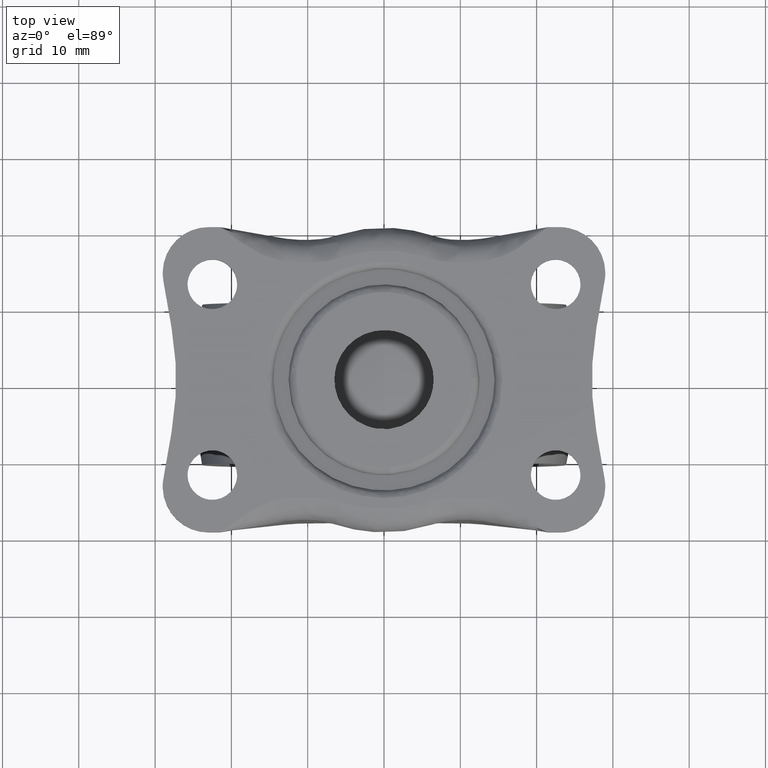
[diagram: clean part render]
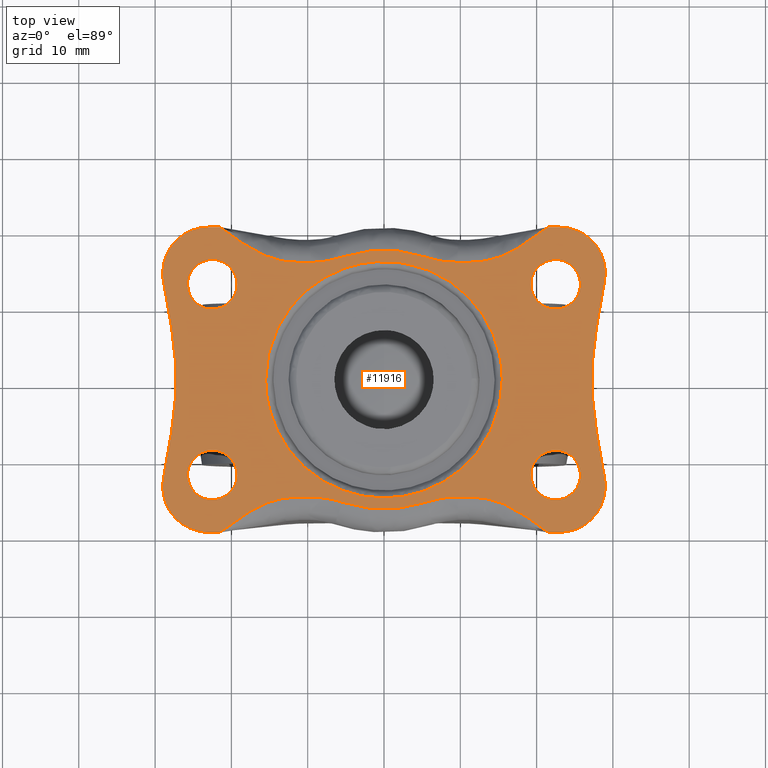
[diagram: same view with one face highlighted and labeled with its STEP entity id]
A machine part, top view. The second image highlights one B-rep face of the part: STEP entity #11916.
In plain terms, the highlighted face is a freeform B-spline surface patch.
Its self-contained STEP definition (entity closure, byte-faithful):
#2978=CARTESIAN_POINT('',(-22.883611262659070,9.272719039321011,40.0));
#2979=VERTEX_POINT('',#2978);
#2985=CARTESIAN_POINT('',(-19.250000000000000,12.500000000000000,40.0));
#2986=VERTEX_POINT('',#2985);
#2987=CARTESIAN_POINT('',(-22.883611262659070,9.272719039321011,40.0));
#2988=CARTESIAN_POINT('',(-22.692478388893573,9.250000000000000,40.0));
#2989=CARTESIAN_POINT('',(-22.500000000000000,9.250000000000002,40.0));
#2990=CARTESIAN_POINT('',(-19.250000000000000,9.250000000000002,40.0));
#2991=CARTESIAN_POINT('',(-19.250000000000000,12.500000000000000,40.0));
#2999=(BOUNDED_CURVE()B_SPLINE_CURVE(2,(#2987,#2988,#2989,#2990,#2991),.UNSPECIFIED.,.F.,.U.)B_SPLINE_CURVE_WITH_KNOTS((3,2,3),(0.229562473513068,0.250000000000000,0.500000000000000),.UNSPECIFIED.)CURVE()GEOMETRIC_REPRESENTATION_ITEM()RATIONAL_B_SPLINE_CURVE((0.956026754182836,0.976055948330629,1.0,0.707106781186547,1.0))REPRESENTATION_ITEM(''));
#3000=EDGE_CURVE('',#2979,#2986,#2999,.T.);
#3002=CARTESIAN_POINT('',(-22.301592246408148,15.743938094864729,40.0));
#3003=VERTEX_POINT('',#3002);
#3004=CARTESIAN_POINT('',(-19.250000000000000,12.500000000000000,40.0));
#3005=CARTESIAN_POINT('',(-19.250000000000004,15.557294717247938,40.000000000000007));
#3006=CARTESIAN_POINT('',(-22.301592246408148,15.743938094864728,40.0));
#3014=(BOUNDED_CURVE()B_SPLINE_CURVE(2,(#3004,#3005,#3006),.UNSPECIFIED.,.F.,.U.)B_SPLINE_CURVE_WITH_KNOTS((3,3),(0.500000000000000,0.739332962230951),.UNSPECIFIED.)CURVE()GEOMETRIC_REPRESENTATION_ITEM()RATIONAL_B_SPLINE_CURVE((1.0,0.719603993296073,0.976072041649591))REPRESENTATION_ITEM(''));
#3015=EDGE_CURVE('',#2986,#3003,#3014,.T.);
#3089=CARTESIAN_POINT('',(-25.750000000000000,12.500000000000000,40.0));
#3090=VERTEX_POINT('',#3089);
#3091=CARTESIAN_POINT('',(-22.301592246408148,15.743938094864729,40.0));
#3092=CARTESIAN_POINT('',(-22.400703519175732,15.749999999999998,40.0));
#3093=CARTESIAN_POINT('',(-22.500000000000000,15.750000000000000,40.0));
#3094=CARTESIAN_POINT('',(-25.750000000000004,15.749999999999995,40.0));
#3095=CARTESIAN_POINT('',(-25.750000000000000,12.500000000000000,40.0));
#3103=(BOUNDED_CURVE()B_SPLINE_CURVE(2,(#3091,#3092,#3093,#3094,#3095),.UNSPECIFIED.,.F.,.U.)B_SPLINE_CURVE_WITH_KNOTS((3,2,3),(0.739332962230951,0.750000000000000,1.0),.UNSPECIFIED.)CURVE()GEOMETRIC_REPRESENTATION_ITEM()RATIONAL_B_SPLINE_CURVE((0.976072041649589,0.987502787890474,1.0,0.707106781186547,1.0))REPRESENTATION_ITEM(''));
#3104=EDGE_CURVE('',#3003,#3090,#3103,.T.);
#3106=CARTESIAN_POINT('',(-25.750000000000000,12.500000000000000,40.0));
#3107=CARTESIAN_POINT('',(-25.750000000000000,9.613432790702369,40.0));
#3108=CARTESIAN_POINT('',(-22.883611262659070,9.272719039321011,40.0));
#3116=(BOUNDED_CURVE()B_SPLINE_CURVE(2,(#3106,#3107,#3108),.UNSPECIFIED.,.F.,.U.)B_SPLINE_CURVE_WITH_KNOTS((3,3),(0.0,0.229562473513068),.UNSPECIFIED.)CURVE()GEOMETRIC_REPRESENTATION_ITEM()RATIONAL_B_SPLINE_CURVE((1.0,0.731050832855918,0.956026754182836))REPRESENTATION_ITEM(''));
#3117=EDGE_CURVE('',#3090,#2979,#3116,.T.);
#3350=CARTESIAN_POINT('',(22.116388737340941,9.272719039321011,40.0));
#3351=VERTEX_POINT('',#3350);
#3357=CARTESIAN_POINT('',(25.750000000000000,12.500000000000000,40.0));
#3358=VERTEX_POINT('',#3357);
#3359=CARTESIAN_POINT('',(22.116388737340930,9.272719039321011,40.0));
#3360=CARTESIAN_POINT('',(22.307521611106438,9.250000000000002,39.999999999999993));
#3361=CARTESIAN_POINT('',(22.500000000000000,9.250000000000002,40.0));
#3362=CARTESIAN_POINT('',(25.750000000000004,9.250000000000002,40.0));
#3363=CARTESIAN_POINT('',(25.750000000000000,12.500000000000000,40.0));
#3371=(BOUNDED_CURVE()B_SPLINE_CURVE(2,(#3359,#3360,#3361,#3362,#3363),.UNSPECIFIED.,.F.,.U.)B_SPLINE_CURVE_WITH_KNOTS((3,2,3),(0.229562473513068,0.250000000000000,0.500000000000000),.UNSPECIFIED.)CURVE()GEOMETRIC_REPRESENTATION_ITEM()RATIONAL_B_SPLINE_CURVE((0.956026754182836,0.976055948330629,1.0,0.707106781186547,1.0))REPRESENTATION_ITEM(''));
#3372=EDGE_CURVE('',#3351,#3358,#3371,.T.);
#3374=CARTESIAN_POINT('',(22.698407753591859,15.743938094864729,40.0));
#3375=VERTEX_POINT('',#3374);
#3376=CARTESIAN_POINT('',(25.750000000000000,12.500000000000000,40.0));
#3377=CARTESIAN_POINT('',(25.750000000000000,15.557294717247938,40.000000000000007));
#3378=CARTESIAN_POINT('',(22.698407753591859,15.743938094864728,40.0));
#3386=(BOUNDED_CURVE()B_SPLINE_CURVE(2,(#3376,#3377,#3378),.UNSPECIFIED.,.F.,.U.)B_SPLINE_CURVE_WITH_KNOTS((3,3),(0.500000000000000,0.739332962230951),.UNSPECIFIED.)CURVE()GEOMETRIC_REPRESENTATION_ITEM()RATIONAL_B_SPLINE_CURVE((1.0,0.719603993296073,0.976072041649591))REPRESENTATION_ITEM(''));
#3387=EDGE_CURVE('',#3358,#3375,#3386,.T.);
#3461=CARTESIAN_POINT('',(19.250000000000000,12.500000000000000,40.0));
#3462=VERTEX_POINT('',#3461);
#3463=CARTESIAN_POINT('',(22.698407753591855,15.743938094864731,40.000000000000007));
#3464=CARTESIAN_POINT('',(22.599296480824272,15.750000000000000,40.0));
#3465=CARTESIAN_POINT('',(22.500000000000000,15.750000000000000,40.0));
#3466=CARTESIAN_POINT('',(19.250000000000000,15.749999999999995,40.0));
#3467=CARTESIAN_POINT('',(19.250000000000000,12.500000000000000,40.0));
#3475=(BOUNDED_CURVE()B_SPLINE_CURVE(2,(#3463,#3464,#3465,#3466,#3467),.UNSPECIFIED.,.F.,.U.)B_SPLINE_CURVE_WITH_KNOTS((3,2,3),(0.739332962230950,0.750000000000000,1.0),.UNSPECIFIED.)CURVE()GEOMETRIC_REPRESENTATION_ITEM()RATIONAL_B_SPLINE_CURVE((0.976072041649589,0.987502787890474,1.0,0.707106781186547,1.0))REPRESENTATION_ITEM(''));
#3476=EDGE_CURVE('',#3375,#3462,#3475,.T.);
#3478=CARTESIAN_POINT('',(19.250000000000000,12.500000000000000,40.0));
#3479=CARTESIAN_POINT('',(19.250000000000007,9.613432790702367,40.0));
#3480=CARTESIAN_POINT('',(22.116388737340930,9.272719039321011,40.0));
#3488=(BOUNDED_CURVE()B_SPLINE_CURVE(2,(#3478,#3479,#3480),.UNSPECIFIED.,.F.,.U.)B_SPLINE_CURVE_WITH_KNOTS((3,3),(0.0,0.229562473513068),.UNSPECIFIED.)CURVE()GEOMETRIC_REPRESENTATION_ITEM()RATIONAL_B_SPLINE_CURVE((1.0,0.731050832855918,0.956026754182836))REPRESENTATION_ITEM(''));
#3489=EDGE_CURVE('',#3462,#3351,#3488,.T.);
#3536=CARTESIAN_POINT('',(22.116388737340941,-15.727280960678989,40.0));
#3537=VERTEX_POINT('',#3536);
#3543=CARTESIAN_POINT('',(25.750000000000000,-12.500000000000000,40.0));
#3544=VERTEX_POINT('',#3543);
#3545=CARTESIAN_POINT('',(22.116388737340941,-15.727280960678993,40.0));
#3546=CARTESIAN_POINT('',(22.307521611106438,-15.750000000000000,39.999999999999993));
#3547=CARTESIAN_POINT('',(22.500000000000000,-15.750000000000000,40.0));
#3548=CARTESIAN_POINT('',(25.750000000000004,-15.749999999999995,40.0));
#3549=CARTESIAN_POINT('',(25.750000000000000,-12.500000000000000,40.0));
#3557=(BOUNDED_CURVE()B_SPLINE_CURVE(2,(#3545,#3546,#3547,#3548,#3549),.UNSPECIFIED.,.F.,.U.)B_SPLINE_CURVE_WITH_KNOTS((3,2,3),(0.229562473513068,0.250000000000000,0.500000000000000),.UNSPECIFIED.)CURVE()GEOMETRIC_REPRESENTATION_ITEM()RATIONAL_B_SPLINE_CURVE((0.956026754182836,0.976055948330629,1.0,0.707106781186547,1.0))REPRESENTATION_ITEM(''));
#3558=EDGE_CURVE('',#3537,#3544,#3557,.T.);
#3560=CARTESIAN_POINT('',(22.698407753591859,-9.256061905135269,40.0));
#3561=VERTEX_POINT('',#3560);
#3562=CARTESIAN_POINT('',(25.750000000000000,-12.500000000000000,40.0));
#3563=CARTESIAN_POINT('',(25.750000000000000,-9.442705282752062,40.000000000000007));
#3564=CARTESIAN_POINT('',(22.698407753591859,-9.256061905135269,40.0));
#3572=(BOUNDED_CURVE()B_SPLINE_CURVE(2,(#3562,#3563,#3564),.UNSPECIFIED.,.F.,.U.)B_SPLINE_CURVE_WITH_KNOTS((3,3),(0.500000000000000,0.739332962230951),.UNSPECIFIED.)CURVE()GEOMETRIC_REPRESENTATION_ITEM()RATIONAL_B_SPLINE_CURVE((1.0,0.719603993296073,0.976072041649591))REPRESENTATION_ITEM(''));
#3573=EDGE_CURVE('',#3544,#3561,#3572,.T.);
#3647=CARTESIAN_POINT('',(19.250000000000000,-12.500000000000000,40.0));
#3648=VERTEX_POINT('',#3647);
#3649=CARTESIAN_POINT('',(22.698407753591855,-9.256061905135269,40.000000000000007));
#3650=CARTESIAN_POINT('',(22.599296480824272,-9.250000000000004,40.0));
#3651=CARTESIAN_POINT('',(22.500000000000000,-9.250000000000002,40.0));
#3652=CARTESIAN_POINT('',(19.250000000000000,-9.250000000000002,40.0));
#3653=CARTESIAN_POINT('',(19.250000000000000,-12.500000000000000,40.0));
#3661=(BOUNDED_CURVE()B_SPLINE_CURVE(2,(#3649,#3650,#3651,#3652,#3653),.UNSPECIFIED.,.F.,.U.)B_SPLINE_CURVE_WITH_KNOTS((3,2,3),(0.739332962230950,0.750000000000000,1.0),.UNSPECIFIED.)CURVE()GEOMETRIC_REPRESENTATION_ITEM()RATIONAL_B_SPLINE_CURVE((0.976072041649589,0.987502787890474,1.0,0.707106781186547,1.0))REPRESENTATION_ITEM(''));
#3662=EDGE_CURVE('',#3561,#3648,#3661,.T.);
#3664=CARTESIAN_POINT('',(19.250000000000000,-12.500000000000000,40.0));
#3665=CARTESIAN_POINT('',(19.250000000000007,-15.386567209297638,40.0));
#3666=CARTESIAN_POINT('',(22.116388737340944,-15.727280960678995,40.0));
#3674=(BOUNDED_CURVE()B_SPLINE_CURVE(2,(#3664,#3665,#3666),.UNSPECIFIED.,.F.,.U.)B_SPLINE_CURVE_WITH_KNOTS((3,3),(0.0,0.229562473513068),.UNSPECIFIED.)CURVE()GEOMETRIC_REPRESENTATION_ITEM()RATIONAL_B_SPLINE_CURVE((1.0,0.731050832855918,0.956026754182836))REPRESENTATION_ITEM(''));
#3675=EDGE_CURVE('',#3648,#3537,#3674,.T.);
#3722=CARTESIAN_POINT('',(-22.883611262659070,-15.727280960678989,40.0));
#3723=VERTEX_POINT('',#3722);
#3729=CARTESIAN_POINT('',(-19.250000000000000,-12.500000000000000,40.0));
#3730=VERTEX_POINT('',#3729);
#3731=CARTESIAN_POINT('',(-22.883611262659070,-15.727280960678989,40.0));
#3732=CARTESIAN_POINT('',(-22.692478388893573,-15.750000000000004,40.0));
#3733=CARTESIAN_POINT('',(-22.500000000000000,-15.750000000000000,40.0));
#3734=CARTESIAN_POINT('',(-19.250000000000000,-15.749999999999995,40.0));
#3735=CARTESIAN_POINT('',(-19.250000000000000,-12.500000000000000,40.0));
#3743=(BOUNDED_CURVE()B_SPLINE_CURVE(2,(#3731,#3732,#3733,#3734,#3735),.UNSPECIFIED.,.F.,.U.)B_SPLINE_CURVE_WITH_KNOTS((3,2,3),(0.229562473513068,0.250000000000000,0.500000000000000),.UNSPECIFIED.)CURVE()GEOMETRIC_REPRESENTATION_ITEM()RATIONAL_B_SPLINE_CURVE((0.956026754182836,0.976055948330629,1.0,0.707106781186547,1.0))REPRESENTATION_ITEM(''));
#3744=EDGE_CURVE('',#3723,#3730,#3743,.T.);
#3746=CARTESIAN_POINT('',(-22.301592246408148,-9.256061905135269,40.0));
#3747=VERTEX_POINT('',#3746);
#3748=CARTESIAN_POINT('',(-19.250000000000000,-12.500000000000000,40.0));
#3749=CARTESIAN_POINT('',(-19.250000000000004,-9.442705282752062,40.000000000000007));
#3750=CARTESIAN_POINT('',(-22.301592246408148,-9.256061905135269,40.0));
#3758=(BOUNDED_CURVE()B_SPLINE_CURVE(2,(#3748,#3749,#3750),.UNSPECIFIED.,.F.,.U.)B_SPLINE_CURVE_WITH_KNOTS((3,3),(0.500000000000000,0.739332962230951),.UNSPECIFIED.)CURVE()GEOMETRIC_REPRESENTATION_ITEM()RATIONAL_B_SPLINE_CURVE((1.0,0.719603993296073,0.976072041649591))REPRESENTATION_ITEM(''));
#3759=EDGE_CURVE('',#3730,#3747,#3758,.T.);
#3833=CARTESIAN_POINT('',(-25.750000000000000,-12.500000000000000,40.0));
#3834=VERTEX_POINT('',#3833);
#3835=CARTESIAN_POINT('',(-22.301592246408148,-9.256061905135269,40.0));
#3836=CARTESIAN_POINT('',(-22.400703519175732,-9.250000000000002,40.0));
#3837=CARTESIAN_POINT('',(-22.500000000000000,-9.250000000000002,40.0));
#3838=CARTESIAN_POINT('',(-25.750000000000004,-9.250000000000002,40.0));
#3839=CARTESIAN_POINT('',(-25.750000000000000,-12.500000000000000,40.0));
#3847=(BOUNDED_CURVE()B_SPLINE_CURVE(2,(#3835,#3836,#3837,#3838,#3839),.UNSPECIFIED.,.F.,.U.)B_SPLINE_CURVE_WITH_KNOTS((3,2,3),(0.739332962230951,0.750000000000000,1.0),.UNSPECIFIED.)CURVE()GEOMETRIC_REPRESENTATION_ITEM()RATIONAL_B_SPLINE_CURVE((0.976072041649589,0.987502787890474,1.0,0.707106781186547,1.0))REPRESENTATION_ITEM(''));
#3848=EDGE_CURVE('',#3747,#3834,#3847,.T.);
#3850=CARTESIAN_POINT('',(-25.750000000000000,-12.500000000000000,40.0));
#3851=CARTESIAN_POINT('',(-25.750000000000000,-15.386567209297633,40.0));
#3852=CARTESIAN_POINT('',(-22.883611262659070,-15.727280960678989,40.0));
#3860=(BOUNDED_CURVE()B_SPLINE_CURVE(2,(#3850,#3851,#3852),.UNSPECIFIED.,.F.,.U.)B_SPLINE_CURVE_WITH_KNOTS((3,3),(0.0,0.229562473513068),.UNSPECIFIED.)CURVE()GEOMETRIC_REPRESENTATION_ITEM()RATIONAL_B_SPLINE_CURVE((1.0,0.731050832855918,0.956026754182836))REPRESENTATION_ITEM(''));
#3861=EDGE_CURVE('',#3834,#3723,#3860,.T.);
#3938=CARTESIAN_POINT('',(-15.498776183558910,-0.194773618373334,40.0));
#3939=VERTEX_POINT('',#3938);
#3953=CARTESIAN_POINT('',(15.500000000000000,0.0,40.0));
#3954=VERTEX_POINT('',#3953);
#3955=CARTESIAN_POINT('',(15.500000000000000,0.0,40.0));
#3956=CARTESIAN_POINT('',(15.500000000000004,-15.500000000000004,39.999999999999993));
#3957=CARTESIAN_POINT('',(0.0,-15.500000000000000,40.0));
#3958=CARTESIAN_POINT('',(-15.306434913165440,-15.499999999999995,39.999999999999993));
#3959=CARTESIAN_POINT('',(-15.498776183558917,-0.194773618373334,40.0));
#3967=(BOUNDED_CURVE()B_SPLINE_CURVE(2,(#3955,#3956,#3957,#3958,#3959),.UNSPECIFIED.,.F.,.U.)B_SPLINE_CURVE_WITH_KNOTS((3,2,3),(0.500000000000000,0.750000000000000,0.997784295917156),.UNSPECIFIED.)CURVE()GEOMETRIC_REPRESENTATION_ITEM()RATIONAL_B_SPLINE_CURVE((1.0,0.707106781186548,1.0,0.709702639989596,0.994854295633490))REPRESENTATION_ITEM(''));
#3968=EDGE_CURVE('',#3954,#3939,#3967,.T.);
#3970=CARTESIAN_POINT('',(-1.080865399485148,15.462267940823351,40.0));
#3971=VERTEX_POINT('',#3970);
#3972=CARTESIAN_POINT('',(-1.080865399485148,15.462267940823349,39.999999999999993));
#3973=CARTESIAN_POINT('',(-0.541091296382306,15.499999999999996,39.999999999999993));
#3974=CARTESIAN_POINT('',(0.0,15.500000000000000,40.0));
#3975=CARTESIAN_POINT('',(15.500000000000004,15.500000000000004,39.999999999999993));
#3976=CARTESIAN_POINT('',(15.500000000000000,0.0,40.0));
#3984=(BOUNDED_CURVE()B_SPLINE_CURVE(2,(#3972,#3973,#3974,#3975,#3976),.UNSPECIFIED.,.F.,.U.)B_SPLINE_CURVE_WITH_KNOTS((3,2,3),(0.237833686527947,0.250000000000000,0.500000000000000),.UNSPECIFIED.)CURVE()GEOMETRIC_REPRESENTATION_ITEM()RATIONAL_B_SPLINE_CURVE((0.972879876371865,0.985746277144308,1.0,0.707106781186548,1.0))REPRESENTATION_ITEM(''));
#3985=EDGE_CURVE('',#3971,#3954,#3984,.T.);
#4036=CARTESIAN_POINT('',(-15.500000000000000,0.0,40.0));
#4037=VERTEX_POINT('',#4036);
#4038=CARTESIAN_POINT('',(-15.500000000000000,0.0,40.0));
#4039=CARTESIAN_POINT('',(-15.499999999999996,14.454321132027081,40.0));
#4040=CARTESIAN_POINT('',(-1.080865399485148,15.462267940823356,39.999999999999993));
#4048=(BOUNDED_CURVE()B_SPLINE_CURVE(2,(#4038,#4039,#4040),.UNSPECIFIED.,.F.,.U.)B_SPLINE_CURVE_WITH_KNOTS((3,3),(0.0,0.237833686527947),.UNSPECIFIED.)CURVE()GEOMETRIC_REPRESENTATION_ITEM()RATIONAL_B_SPLINE_CURVE((1.0,0.721360504042240,0.972879876371865))REPRESENTATION_ITEM(''));
#4049=EDGE_CURVE('',#4037,#3971,#4048,.T.);
#4051=CARTESIAN_POINT('',(-15.498776183558910,-0.194773618373334,40.0));
#4052=CARTESIAN_POINT('',(-15.500000000000004,-0.097390654075764,39.999999999999993));
#4053=CARTESIAN_POINT('',(-15.500000000000000,0.0,40.0));
#4061=(BOUNDED_CURVE()B_SPLINE_CURVE(2,(#4051,#4052,#4053),.UNSPECIFIED.,.F.,.U.)B_SPLINE_CURVE_WITH_KNOTS((3,3),(0.997784295917156,1.0),.UNSPECIFIED.)CURVE()GEOMETRIC_REPRESENTATION_ITEM()RATIONAL_B_SPLINE_CURVE((0.994854295633490,0.997404141196951,1.0))REPRESENTATION_ITEM(''));
#4062=EDGE_CURVE('',#3939,#4037,#4061,.T.);
#5480=CARTESIAN_POINT('',(27.835605114469150,-6.819492342354530,40.0));
#5481=VERTEX_POINT('',#5480);
#5487=CARTESIAN_POINT('',(27.838640466785701,-6.836943648978890,40.0));
#5488=VERTEX_POINT('',#5487);
#5489=CARTESIAN_POINT('',(27.838640466785730,-6.836943648978886,40.0));
#5490=CARTESIAN_POINT('',(27.837115062612966,-6.828219339821330,40.000000000000007));
#5491=CARTESIAN_POINT('',(27.835605114469161,-6.819492342354530,40.0));
#5499=(BOUNDED_CURVE()B_SPLINE_CURVE(2,(#5489,#5490,#5491),.UNSPECIFIED.,.F.,.U.)CURVE()GEOMETRIC_REPRESENTATION_ITEM()QUASI_UNIFORM_CURVE()RATIONAL_B_SPLINE_CURVE((1.0,0.999999607798090,1.0))REPRESENTATION_ITEM(''));
#5500=EDGE_CURVE('',#5488,#5481,#5499,.T.);
#5541=CARTESIAN_POINT('',(27.838640466785701,6.836943648978900,40.0));
#5542=VERTEX_POINT('',#5541);
#5548=CARTESIAN_POINT('',(27.835605114469150,6.819492342354530,40.0));
#5549=VERTEX_POINT('',#5548);
#5550=CARTESIAN_POINT('',(27.835605114469161,6.819492342354528,40.0));
#5551=CARTESIAN_POINT('',(27.837115062612959,6.828219339821285,40.0));
#5552=CARTESIAN_POINT('',(27.838640466785730,6.836943648978893,40.0));
#5560=(BOUNDED_CURVE()B_SPLINE_CURVE(2,(#5550,#5551,#5552),.UNSPECIFIED.,.F.,.U.)CURVE()GEOMETRIC_REPRESENTATION_ITEM()QUASI_UNIFORM_CURVE()RATIONAL_B_SPLINE_CURVE((1.0,0.999999607798090,1.0))REPRESENTATION_ITEM(''));
#5561=EDGE_CURVE('',#5549,#5542,#5560,.T.);
#5602=CARTESIAN_POINT('',(-27.835605114468049,6.819492342349180,40.0));
#5603=VERTEX_POINT('',#5602);
#5609=CARTESIAN_POINT('',(-27.838640466784849,6.836943648974891,40.0));
#5610=VERTEX_POINT('',#5609);
#5611=CARTESIAN_POINT('',(-27.838640466784842,6.836943648974893,40.0));
#5612=CARTESIAN_POINT('',(-27.837115062611844,6.828219339816004,40.0));
#5613=CARTESIAN_POINT('',(-27.835605114468031,6.819492342349180,40.0));
#5621=(BOUNDED_CURVE()B_SPLINE_CURVE(2,(#5611,#5612,#5613),.UNSPECIFIED.,.F.,.U.)CURVE()GEOMETRIC_REPRESENTATION_ITEM()QUASI_UNIFORM_CURVE()RATIONAL_B_SPLINE_CURVE((1.0,0.999999607798090,1.0))REPRESENTATION_ITEM(''));
#5622=EDGE_CURVE('',#5610,#5603,#5621,.T.);
#5663=CARTESIAN_POINT('',(-27.838640466785549,-6.836943648978880,40.0));
#5664=VERTEX_POINT('',#5663);
#5670=CARTESIAN_POINT('',(-27.835605114468951,-6.819492342354520,40.0));
#5671=VERTEX_POINT('',#5670);
#5672=CARTESIAN_POINT('',(-27.835605114468962,-6.819492342354517,40.0));
#5673=CARTESIAN_POINT('',(-27.837115062612583,-6.828219339820246,40.0));
#5674=CARTESIAN_POINT('',(-27.838640466785531,-6.836943648978881,40.0));
#5682=(BOUNDED_CURVE()B_SPLINE_CURVE(2,(#5672,#5673,#5674),.UNSPECIFIED.,.F.,.U.)CURVE()GEOMETRIC_REPRESENTATION_ITEM()QUASI_UNIFORM_CURVE()RATIONAL_B_SPLINE_CURVE((1.0,0.999999607798090,1.0))REPRESENTATION_ITEM(''));
#5683=EDGE_CURVE('',#5671,#5664,#5682,.T.);
#5713=CARTESIAN_POINT('',(-13.338354358568759,15.565371980939050,40.0));
#5714=VERTEX_POINT('',#5713);
#5730=CARTESIAN_POINT('',(-21.500166403902849,20.0,40.0));
#5731=VERTEX_POINT('',#5730);
#5739=CARTESIAN_POINT('',(-13.338354358568740,15.565371980939000,40.0));
#5740=CARTESIAN_POINT('',(-16.227004821455552,16.057802242236701,40.0));
#5741=CARTESIAN_POINT('',(-18.863585612679199,18.028901121118349,40.0));
#5742=CARTESIAN_POINT('',(-21.500166403902849,20.0,40.0));
#5743=QUASI_UNIFORM_CURVE('',3,(#5739,#5740,#5741,#5742),.UNSPECIFIED.,.F.,.U.);
#5744=EDGE_CURVE('',#5714,#5731,#5743,.T.);
#5777=CARTESIAN_POINT('',(-11.153750537487880,15.380500000000000,40.0));
#5778=VERTEX_POINT('',#5777);
#5802=CARTESIAN_POINT('',(-11.153750537487880,15.380500000000000,40.0));
#5803=CARTESIAN_POINT('',(-12.253870899920059,15.380546544757800,40.0));
#5804=CARTESIAN_POINT('',(-13.338354358568759,15.565371980939050,40.0));
#5805=QUASI_UNIFORM_CURVE('',2,(#5802,#5803,#5804),.UNSPECIFIED.,.F.,.U.);
#5806=EDGE_CURVE('',#5778,#5714,#5805,.T.);
#5831=CARTESIAN_POINT('',(-9.660201957674060,15.380500000000000,40.0));
#5832=VERTEX_POINT('',#5831);
#5856=CARTESIAN_POINT('',(-9.660201957674051,15.380500000000000,40.0));
#5857=CARTESIAN_POINT('',(-10.158051484278660,15.380500000000000,40.0));
#5858=CARTESIAN_POINT('',(-10.655901010883261,15.380500000000000,40.0));
#5859=CARTESIAN_POINT('',(-11.153750537487880,15.380500000000000,40.0));
#5860=QUASI_UNIFORM_CURVE('',3,(#5856,#5857,#5858,#5859),.UNSPECIFIED.,.F.,.U.);
#5861=EDGE_CURVE('',#5832,#5778,#5860,.T.);
#5914=CARTESIAN_POINT('',(-5.462824469773600,16.070094106098502,40.0));
#5915=VERTEX_POINT('',#5914);
#5939=CARTESIAN_POINT('',(-5.462824469773610,16.070094106098502,40.0));
#5940=CARTESIAN_POINT('',(-7.504399215922860,15.380604032400100,40.0));
#5941=CARTESIAN_POINT('',(-9.660201957674060,15.380500000000000,40.0));
#5942=QUASI_UNIFORM_CURVE('',2,(#5939,#5940,#5941),.UNSPECIFIED.,.F.,.U.);
#5943=EDGE_CURVE('',#5915,#5832,#5942,.T.);
#5996=CARTESIAN_POINT('',(5.462824469773540,16.070094106098502,40.0));
#5997=VERTEX_POINT('',#5996);
#6040=CARTESIAN_POINT('',(5.462824469773570,16.070094106098502,40.0));
#6041=CARTESIAN_POINT('',(2.819397669560950,16.962820114114400,40.0));
#6042=CARTESIAN_POINT('',(4.137315E-013,16.962976097145649,40.0));
#6043=CARTESIAN_POINT('',(-2.818474066562245,16.963132029078601,40.0));
#6044=CARTESIAN_POINT('',(-5.462824469773600,16.070094106098502,40.0));
#6045=B_SPLINE_CURVE_WITH_KNOTS('',2,(#6040,#6041,#6042,#6043,#6044),.UNSPECIFIED.,.F.,.U.,(3,2,3),(0.0,0.500000000000000,1.0),.UNSPECIFIED.);
#6046=EDGE_CURVE('',#5997,#5915,#6045,.T.);
#6099=CARTESIAN_POINT('',(9.660201957674051,15.380500000000000,40.0));
#6100=VERTEX_POINT('',#6099);
#6124=CARTESIAN_POINT('',(9.660201957674051,15.380500000000000,40.0));
#6125=CARTESIAN_POINT('',(7.504395375814160,15.380604010988851,40.0));
#6126=CARTESIAN_POINT('',(5.462824469773540,16.070094106098502,40.0));
#6127=QUASI_UNIFORM_CURVE('',2,(#6124,#6125,#6126),.UNSPECIFIED.,.F.,.U.);
#6128=EDGE_CURVE('',#6100,#5997,#6127,.T.);
#6153=CARTESIAN_POINT('',(11.153735573961820,15.380500000000000,40.0));
#6154=VERTEX_POINT('',#6153);
#6178=CARTESIAN_POINT('',(11.153735573961759,15.380500000000000,40.0));
#6179=CARTESIAN_POINT('',(10.655891035199200,15.380500000000000,40.0));
#6180=CARTESIAN_POINT('',(10.158046496436620,15.380500000000000,40.0));
#6181=CARTESIAN_POINT('',(9.660201957674051,15.380500000000000,40.0));
#6182=QUASI_UNIFORM_CURVE('',3,(#6178,#6179,#6180,#6181),.UNSPECIFIED.,.F.,.U.);
#6183=EDGE_CURVE('',#6154,#6100,#6182,.T.);
#6216=CARTESIAN_POINT('',(13.338377474229640,15.565378472382850,40.0));
#6217=VERTEX_POINT('',#6216);
#6241=CARTESIAN_POINT('',(13.338377474229640,15.565378472382850,40.0));
#6242=CARTESIAN_POINT('',(12.253875388759900,15.380546546399550,40.0));
#6243=CARTESIAN_POINT('',(11.153735573961820,15.380500000000000,40.0));
#6244=QUASI_UNIFORM_CURVE('',2,(#6241,#6242,#6243),.UNSPECIFIED.,.F.,.U.);
#6245=EDGE_CURVE('',#6217,#6154,#6244,.T.);
#6270=CARTESIAN_POINT('',(21.500000000000000,20.0,40.0));
#6271=VERTEX_POINT('',#6270);
#6272=CARTESIAN_POINT('',(21.500000000000000,20.0,40.0));
#6273=CARTESIAN_POINT('',(18.863483607693869,18.028903854092960,40.0));
#6274=CARTESIAN_POINT('',(16.226967565851300,16.057807274814060,40.0));
#6275=CARTESIAN_POINT('',(13.338377474229640,15.565378472382850,40.0));
#6276=B_SPLINE_CURVE_WITH_KNOTS('',3,(#6272,#6273,#6274,#6275),.UNSPECIFIED.,.F.,.U.,(4,4),(0.0,0.999999968984386),.UNSPECIFIED.);
#6277=EDGE_CURVE('',#6271,#6217,#6276,.T.);
#6310=CARTESIAN_POINT('',(13.338377474229640,-15.565378472382850,40.0));
#6311=VERTEX_POINT('',#6310);
#6327=CARTESIAN_POINT('',(21.499996000000099,-20.0,40.0));
#6328=VERTEX_POINT('',#6327);
#6336=CARTESIAN_POINT('',(13.338377474229640,-15.565378472382850,40.0));
#6337=CARTESIAN_POINT('',(16.226966359763502,-16.057807069207751,40.0));
#6338=CARTESIAN_POINT('',(18.863481179881799,-18.028903534603899,40.0));
#6339=CARTESIAN_POINT('',(21.499996000000099,-20.0,40.0));
#6340=QUASI_UNIFORM_CURVE('',3,(#6336,#6337,#6338,#6339),.UNSPECIFIED.,.F.,.U.);
#6341=EDGE_CURVE('',#6311,#6328,#6340,.T.);
#6374=CARTESIAN_POINT('',(11.153735573961759,-15.380500000000000,40.0));
#6375=VERTEX_POINT('',#6374);
#6399=CARTESIAN_POINT('',(11.153735573961759,-15.380500000000000,40.0));
#6400=CARTESIAN_POINT('',(12.253875388757921,-15.380546546399550,40.0));
#6401=CARTESIAN_POINT('',(13.338377474229640,-15.565378472382850,40.0));
#6402=QUASI_UNIFORM_CURVE('',2,(#6399,#6400,#6401),.UNSPECIFIED.,.F.,.U.);
#6403=EDGE_CURVE('',#6375,#6311,#6402,.T.);
#6428=CARTESIAN_POINT('',(9.660201957674040,-15.380500000000000,40.0));
#6429=VERTEX_POINT('',#6428);
#6453=CARTESIAN_POINT('',(9.660201957674040,-15.380500000000000,40.0));
#6454=CARTESIAN_POINT('',(10.158046496436620,-15.380500000000000,40.0));
#6455=CARTESIAN_POINT('',(10.655891035199200,-15.380500000000000,40.0));
#6456=CARTESIAN_POINT('',(11.153735573961759,-15.380500000000000,40.0));
#6457=QUASI_UNIFORM_CURVE('',3,(#6453,#6454,#6455,#6456),.UNSPECIFIED.,.F.,.U.);
#6458=EDGE_CURVE('',#6429,#6375,#6457,.T.);
#6511=CARTESIAN_POINT('',(5.462824469773589,-16.070094106098502,40.0));
#6512=VERTEX_POINT('',#6511);
#6536=CARTESIAN_POINT('',(5.462824469773589,-16.070094106098502,40.0));
#6537=CARTESIAN_POINT('',(7.504399216338610,-15.380604032090750,40.0));
#6538=CARTESIAN_POINT('',(9.660201957674040,-15.380500000000000,40.0));
#6539=QUASI_UNIFORM_CURVE('',2,(#6536,#6537,#6538),.UNSPECIFIED.,.F.,.U.);
#6540=EDGE_CURVE('',#6512,#6429,#6539,.T.);
#6593=CARTESIAN_POINT('',(-5.462824469773560,-16.070094106098502,40.0));
#6594=VERTEX_POINT('',#6593);
#6637=CARTESIAN_POINT('',(-5.462824469773570,-16.070094106098502,40.0));
#6638=CARTESIAN_POINT('',(-2.819397669570835,-16.962820114111750,40.0));
#6639=CARTESIAN_POINT('',(7.892992E-014,-16.962976097153248,40.0));
#6640=CARTESIAN_POINT('',(2.818474066588655,-16.963132029096450,40.0));
#6641=CARTESIAN_POINT('',(5.462824469773589,-16.070094106098502,40.0));
#6642=B_SPLINE_CURVE_WITH_KNOTS('',2,(#6637,#6638,#6639,#6640,#6641),.UNSPECIFIED.,.F.,.U.,(3,2,3),(0.0,0.500000000000000,1.0),.UNSPECIFIED.);
#6643=EDGE_CURVE('',#6594,#6512,#6642,.T.);
#6696=CARTESIAN_POINT('',(-9.660201957674040,-15.380500000000000,40.0));
#6697=VERTEX_POINT('',#6696);
#6721=CARTESIAN_POINT('',(-9.660201957674030,-15.380500000000000,40.0));
#6722=CARTESIAN_POINT('',(-7.504395375671070,-15.380604010977200,40.0));
#6723=CARTESIAN_POINT('',(-5.462824469773560,-16.070094106098502,40.0));
#6724=QUASI_UNIFORM_CURVE('',2,(#6721,#6722,#6723),.UNSPECIFIED.,.F.,.U.);
#6725=EDGE_CURVE('',#6697,#6594,#6724,.T.);
#6750=CARTESIAN_POINT('',(-11.153735925216059,-15.380500000000000,40.0));
#6751=VERTEX_POINT('',#6750);
#6775=CARTESIAN_POINT('',(-11.153735925216059,-15.380500000000000,40.0));
#6776=CARTESIAN_POINT('',(-10.655891269368720,-15.380500000000000,40.0));
#6777=CARTESIAN_POINT('',(-10.158046613521380,-15.380500000000000,40.0));
#6778=CARTESIAN_POINT('',(-9.660201957674040,-15.380500000000000,40.0));
#6779=QUASI_UNIFORM_CURVE('',3,(#6775,#6776,#6777,#6778),.UNSPECIFIED.,.F.,.U.);
#6780=EDGE_CURVE('',#6751,#6697,#6779,.T.);
#6813=CARTESIAN_POINT('',(-13.338376931611760,-15.565378320001150,40.0));
#6814=VERTEX_POINT('',#6813);
#6838=CARTESIAN_POINT('',(-13.338376931611760,-15.565378320001150,40.0));
#6839=CARTESIAN_POINT('',(-12.253875283378640,-15.380546546361250,40.0));
#6840=CARTESIAN_POINT('',(-11.153735925216059,-15.380500000000000,40.0));
#6841=QUASI_UNIFORM_CURVE('',2,(#6838,#6839,#6840),.UNSPECIFIED.,.F.,.U.);
#6842=EDGE_CURVE('',#6814,#6751,#6841,.T.);
#6867=CARTESIAN_POINT('',(-21.500000000000000,-20.0,40.0));
#6868=VERTEX_POINT('',#6867);
#6869=CARTESIAN_POINT('',(-21.500000000000000,-20.0,40.0));
#6870=CARTESIAN_POINT('',(-18.863483631296049,-18.028903477949150,40.0));
#6871=CARTESIAN_POINT('',(-16.226967262592151,-16.057806955898300,40.0));
#6872=CARTESIAN_POINT('',(-13.338376931611760,-15.565378320001150,40.0));
#6873=QUASI_UNIFORM_CURVE('',3,(#6869,#6870,#6871,#6872),.UNSPECIFIED.,.F.,.U.);
#6874=EDGE_CURVE('',#6868,#6814,#6873,.T.);
#11428=CARTESIAN_POINT('',(28.910381000000100,12.966594999999900,40.0));
#11429=VERTEX_POINT('',#11428);
#11430=CARTESIAN_POINT('',(27.838640466785701,6.836943648978900,40.0));
#11431=CARTESIAN_POINT('',(28.910381000000100,12.966594999999900,40.0));
#11432=QUASI_UNIFORM_CURVE('',1,(#11430,#11431),.UNSPECIFIED.,.F.,.U.);
#11433=EDGE_CURVE('',#5542,#11429,#11432,.T.);
#11461=CARTESIAN_POINT('',(27.835605114469150,6.819492342354530,40.0));
#11462=CARTESIAN_POINT('',(26.655694172223324,2.260101E-015,40.000000000000007));
#11463=CARTESIAN_POINT('',(27.835605114469150,-6.819492342354530,40.0));
#11471=(BOUNDED_CURVE()B_SPLINE_CURVE(2,(#11461,#11462,#11463),.UNSPECIFIED.,.F.,.U.)CURVE()GEOMETRIC_REPRESENTATION_ITEM()QUASI_UNIFORM_CURVE()RATIONAL_B_SPLINE_CURVE((1.0,0.985359872138274,1.0))REPRESENTATION_ITEM(''));
#11472=EDGE_CURVE('',#5549,#5481,#11471,.T.);
#11485=CARTESIAN_POINT('',(28.910381000000100,-12.966594999999900,40.0));
#11486=VERTEX_POINT('',#11485);
#11487=CARTESIAN_POINT('',(28.910381000000100,-12.966594999999900,40.0));
#11488=CARTESIAN_POINT('',(27.838640466785701,-6.836943648978890,40.0));
#11489=QUASI_UNIFORM_CURVE('',1,(#11487,#11488),.UNSPECIFIED.,.F.,.U.);
#11490=EDGE_CURVE('',#11486,#5488,#11489,.T.);
#11516=CARTESIAN_POINT('',(23.0,-20.0,40.0));
#11517=VERTEX_POINT('',#11516);
#11518=CARTESIAN_POINT('',(23.0,-20.0,40.0));
#11519=CARTESIAN_POINT('',(25.795236011612449,-20.000015964880770,40.000000000000007));
#11520=CARTESIAN_POINT('',(27.593523664049801,-17.860037955657010,40.0));
#11521=CARTESIAN_POINT('',(29.391811316487143,-15.720059946433240,40.000000000000007));
#11522=CARTESIAN_POINT('',(28.910381000000068,-12.966594999999909,40.0));
#11530=(BOUNDED_CURVE()B_SPLINE_CURVE(2,(#11518,#11519,#11520,#11521,#11522),.UNSPECIFIED.,.F.,.U.)B_SPLINE_CURVE_WITH_KNOTS((3,2,3),(0.0,0.500000000000000,1.0),.UNSPECIFIED.)CURVE()GEOMETRIC_REPRESENTATION_ITEM()RATIONAL_B_SPLINE_CURVE((1.0,0.906458993077640,1.0,0.906458993077640,1.0))REPRESENTATION_ITEM(''));
#11531=EDGE_CURVE('',#11517,#11486,#11530,.T.);
#11548=CARTESIAN_POINT('',(21.499996000000099,-20.0,40.0));
#11549=CARTESIAN_POINT('',(23.0,-20.0,40.0));
#11550=QUASI_UNIFORM_CURVE('',1,(#11548,#11549),.UNSPECIFIED.,.F.,.U.);
#11551=EDGE_CURVE('',#6328,#11517,#11550,.T.);
#11600=CARTESIAN_POINT('',(-22.999995811209700,-19.999999999998451,40.0));
#11601=VERTEX_POINT('',#11600);
#11602=CARTESIAN_POINT('',(-22.999995811209700,-19.999999999998451,40.0));
#11603=CARTESIAN_POINT('',(-21.500000000000000,-20.0,40.0));
#11604=QUASI_UNIFORM_CURVE('',1,(#11602,#11603),.UNSPECIFIED.,.F.,.U.);
#11605=EDGE_CURVE('',#11601,#6868,#11604,.T.);
#11620=CARTESIAN_POINT('',(-28.910380999999902,-12.966594999999900,40.0));
#11621=VERTEX_POINT('',#11620);
#11622=CARTESIAN_POINT('',(-27.838640466785549,-6.836943648978880,40.0));
#11623=CARTESIAN_POINT('',(-28.910380999999902,-12.966594999999900,40.0));
#11624=QUASI_UNIFORM_CURVE('',1,(#11622,#11623),.UNSPECIFIED.,.F.,.U.);
#11625=EDGE_CURVE('',#5664,#11621,#11624,.T.);
#11653=CARTESIAN_POINT('',(-27.835605114469061,-6.819492342354506,40.0));
#11654=CARTESIAN_POINT('',(-26.655694172223814,-2.742265E-012,40.000000000000007));
#11655=CARTESIAN_POINT('',(-27.835605114468120,6.819492342349150,40.0));
#11663=(BOUNDED_CURVE()B_SPLINE_CURVE(2,(#11653,#11654,#11655),.UNSPECIFIED.,.F.,.U.)CURVE()GEOMETRIC_REPRESENTATION_ITEM()QUASI_UNIFORM_CURVE()RATIONAL_B_SPLINE_CURVE((1.0,0.985359872138285,1.0))REPRESENTATION_ITEM(''));
#11664=EDGE_CURVE('',#5671,#5603,#11663,.T.);
#11677=CARTESIAN_POINT('',(-28.910380999999902,12.966594999999900,40.0));
#11678=VERTEX_POINT('',#11677);
#11679=CARTESIAN_POINT('',(-28.910380999999902,12.966594999999900,40.0));
#11680=CARTESIAN_POINT('',(-27.838640466784849,6.836943648974891,40.0));
#11681=QUASI_UNIFORM_CURVE('',1,(#11679,#11680),.UNSPECIFIED.,.F.,.U.);
#11682=EDGE_CURVE('',#11678,#5610,#11681,.T.);
#11708=CARTESIAN_POINT('',(-23.0,20.0,40.0));
#11709=VERTEX_POINT('',#11708);
#11710=CARTESIAN_POINT('',(-23.0,20.0,40.0));
#11711=CARTESIAN_POINT('',(-25.795236011612406,20.000015964880706,40.0));
#11712=CARTESIAN_POINT('',(-27.593523664049702,17.860037955656949,40.0));
#11713=CARTESIAN_POINT('',(-29.391811316486987,15.720059946433190,40.0));
#11714=CARTESIAN_POINT('',(-28.910380999999919,12.966594999999900,40.0));
#11722=(BOUNDED_CURVE()B_SPLINE_CURVE(2,(#11710,#11711,#11712,#11713,#11714),.UNSPECIFIED.,.F.,.U.)B_SPLINE_CURVE_WITH_KNOTS((3,2,3),(0.0,0.500000000000000,1.0),.UNSPECIFIED.)CURVE()GEOMETRIC_REPRESENTATION_ITEM()RATIONAL_B_SPLINE_CURVE((1.0,0.906458993077642,1.0,0.906458993077642,1.0))REPRESENTATION_ITEM(''));
#11723=EDGE_CURVE('',#11709,#11678,#11722,.T.);
#11740=CARTESIAN_POINT('',(-21.500166403902849,20.0,40.0));
#11741=CARTESIAN_POINT('',(-23.0,20.0,40.0));
#11742=QUASI_UNIFORM_CURVE('',1,(#11740,#11741),.UNSPECIFIED.,.F.,.U.);
#11743=EDGE_CURVE('',#5731,#11709,#11742,.T.);
#11800=CARTESIAN_POINT('',(23.0,20.0,40.0));
#11801=VERTEX_POINT('',#11800);
#11802=CARTESIAN_POINT('',(23.0,20.0,40.0));
#11803=CARTESIAN_POINT('',(21.500000000000000,20.0,40.0));
#11804=QUASI_UNIFORM_CURVE('',1,(#11802,#11803),.UNSPECIFIED.,.F.,.U.);
#11805=EDGE_CURVE('',#11801,#6271,#11804,.T.);
#11815=CARTESIAN_POINT('',(-31.897141823450490,21.997999922472239,40.0));
#11816=CARTESIAN_POINT('',(31.897143379133919,21.997999922472239,40.0));
#11817=CARTESIAN_POINT('',(-31.897141823450490,-21.998000995355842,40.0));
#11818=CARTESIAN_POINT('',(31.897143379133919,-21.998000995355842,40.0));
#11819=B_SPLINE_SURFACE_WITH_KNOTS('',1,1,((#11815,#11817),(#11816,#11818)),.UNSPECIFIED.,.F.,.F.,.U.,(2,2),(2,2),(0.0,63.794285202584412),(0.0,43.996000917828077),.UNSPECIFIED.);
#11820=ORIENTED_EDGE('',*,*,#5806,.T.);
#11821=ORIENTED_EDGE('',*,*,#5744,.T.);
#11822=ORIENTED_EDGE('',*,*,#11743,.T.);
#11823=ORIENTED_EDGE('',*,*,#11723,.T.);
#11824=ORIENTED_EDGE('',*,*,#11682,.T.);
#11825=ORIENTED_EDGE('',*,*,#5622,.T.);
#11826=ORIENTED_EDGE('',*,*,#11664,.F.);
#11827=ORIENTED_EDGE('',*,*,#5683,.T.);
#11828=ORIENTED_EDGE('',*,*,#11625,.T.);
#11829=CARTESIAN_POINT('',(-28.910380999999919,-12.966594999999900,40.0));
#11830=CARTESIAN_POINT('',(-29.391811535993448,-15.720061201865803,40.000000000000007));
#11831=CARTESIAN_POINT('',(-27.593522316640861,-17.860039559084669,40.0));
#11832=CARTESIAN_POINT('',(-25.795233097288264,-20.000017916303527,40.000000000000007));
#11833=CARTESIAN_POINT('',(-22.999995811209700,-19.999999999998462,40.0));
#11841=(BOUNDED_CURVE()B_SPLINE_CURVE(2,(#11829,#11830,#11831,#11832,#11833),.UNSPECIFIED.,.F.,.U.)B_SPLINE_CURVE_WITH_KNOTS((3,2,3),(0.0,0.500000000000000,1.0),.UNSPECIFIED.)CURVE()GEOMETRIC_REPRESENTATION_ITEM()RATIONAL_B_SPLINE_CURVE((1.0,0.906458919373555,1.0,0.906458919373555,1.0))REPRESENTATION_ITEM(''));
#11842=EDGE_CURVE('',#11621,#11601,#11841,.T.);
#11843=ORIENTED_EDGE('',*,*,#11842,.T.);
#11844=ORIENTED_EDGE('',*,*,#11605,.T.);
#11845=ORIENTED_EDGE('',*,*,#6874,.T.);
#11846=ORIENTED_EDGE('',*,*,#6842,.T.);
#11847=ORIENTED_EDGE('',*,*,#6780,.T.);
#11848=ORIENTED_EDGE('',*,*,#6725,.T.);
#11849=ORIENTED_EDGE('',*,*,#6643,.T.);
#11850=ORIENTED_EDGE('',*,*,#6540,.T.);
#11851=ORIENTED_EDGE('',*,*,#6458,.T.);
#11852=ORIENTED_EDGE('',*,*,#6403,.T.);
#11853=ORIENTED_EDGE('',*,*,#6341,.T.);
#11854=ORIENTED_EDGE('',*,*,#11551,.T.);
#11855=ORIENTED_EDGE('',*,*,#11531,.T.);
#11856=ORIENTED_EDGE('',*,*,#11490,.T.);
#11857=ORIENTED_EDGE('',*,*,#5500,.T.);
#11858=ORIENTED_EDGE('',*,*,#11472,.F.);
#11859=ORIENTED_EDGE('',*,*,#5561,.T.);
#11860=ORIENTED_EDGE('',*,*,#11433,.T.);
#11861=CARTESIAN_POINT('',(28.910381000000068,12.966594999999909,40.0));
#11862=CARTESIAN_POINT('',(29.391811316487150,15.720059946433235,40.0));
#11863=CARTESIAN_POINT('',(27.593523664049801,17.860037955657010,40.0));
#11864=CARTESIAN_POINT('',(25.795236011612456,20.000015964880774,40.0));
#11865=CARTESIAN_POINT('',(23.0,20.0,40.0));
#11873=(BOUNDED_CURVE()B_SPLINE_CURVE(2,(#11861,#11862,#11863,#11864,#11865),.UNSPECIFIED.,.F.,.U.)B_SPLINE_CURVE_WITH_KNOTS((3,2,3),(0.0,0.500000000000000,1.0),.UNSPECIFIED.)CURVE()GEOMETRIC_REPRESENTATION_ITEM()RATIONAL_B_SPLINE_CURVE((1.0,0.906458993077639,1.0,0.906458993077639,1.0))REPRESENTATION_ITEM(''));
#11874=EDGE_CURVE('',#11429,#11801,#11873,.T.);
#11875=ORIENTED_EDGE('',*,*,#11874,.T.);
#11876=ORIENTED_EDGE('',*,*,#11805,.T.);
#11877=ORIENTED_EDGE('',*,*,#6277,.T.);
#11878=ORIENTED_EDGE('',*,*,#6245,.T.);
#11879=ORIENTED_EDGE('',*,*,#6183,.T.);
#11880=ORIENTED_EDGE('',*,*,#6128,.T.);
#11881=ORIENTED_EDGE('',*,*,#6046,.T.);
#11882=ORIENTED_EDGE('',*,*,#5943,.T.);
#11883=ORIENTED_EDGE('',*,*,#5861,.T.);
#11884=EDGE_LOOP('',(#11820,#11821,#11822,#11823,#11824,#11825,#11826,#11827,#11828,#11843,#11844,#11845,#11846,#11847,#11848,#11849,#11850,#11851,#11852,#11853,#11854,#11855,#11856,#11857,#11858,#11859,#11860,#11875,#11876,#11877,#11878,#11879,#11880,#11881,#11882,#11883));
#11885=FACE_OUTER_BOUND('',#11884,.T.);
#11886=ORIENTED_EDGE('',*,*,#3968,.T.);
#11887=ORIENTED_EDGE('',*,*,#4062,.T.);
#11888=ORIENTED_EDGE('',*,*,#4049,.T.);
#11889=ORIENTED_EDGE('',*,*,#3985,.T.);
#11890=EDGE_LOOP('',(#11886,#11887,#11888,#11889));
#11891=FACE_BOUND('',#11890,.T.);
#11892=ORIENTED_EDGE('',*,*,#3759,.F.);
#11893=ORIENTED_EDGE('',*,*,#3744,.F.);
#11894=ORIENTED_EDGE('',*,*,#3861,.F.);
#11895=ORIENTED_EDGE('',*,*,#3848,.F.);
#11896=EDGE_LOOP('',(#11892,#11893,#11894,#11895));
#11897=FACE_BOUND('',#11896,.T.);
#11898=ORIENTED_EDGE('',*,*,#3573,.F.);
#11899=ORIENTED_EDGE('',*,*,#3558,.F.);
#11900=ORIENTED_EDGE('',*,*,#3675,.F.);
#11901=ORIENTED_EDGE('',*,*,#3662,.F.);
#11902=EDGE_LOOP('',(#11898,#11899,#11900,#11901));
#11903=FACE_BOUND('',#11902,.T.);
#11904=ORIENTED_EDGE('',*,*,#3387,.F.);
#11905=ORIENTED_EDGE('',*,*,#3372,.F.);
#11906=ORIENTED_EDGE('',*,*,#3489,.F.);
#11907=ORIENTED_EDGE('',*,*,#3476,.F.);
#11908=EDGE_LOOP('',(#11904,#11905,#11906,#11907));
#11909=FACE_BOUND('',#11908,.T.);
#11910=ORIENTED_EDGE('',*,*,#3015,.F.);
#11911=ORIENTED_EDGE('',*,*,#3000,.F.);
#11912=ORIENTED_EDGE('',*,*,#3117,.F.);
#11913=ORIENTED_EDGE('',*,*,#3104,.F.);
#11914=EDGE_LOOP('',(#11910,#11911,#11912,#11913));
#11915=FACE_BOUND('',#11914,.T.);
#11916=ADVANCED_FACE('',(#11885,#11891,#11897,#11903,#11909,#11915),#11819,.F.);